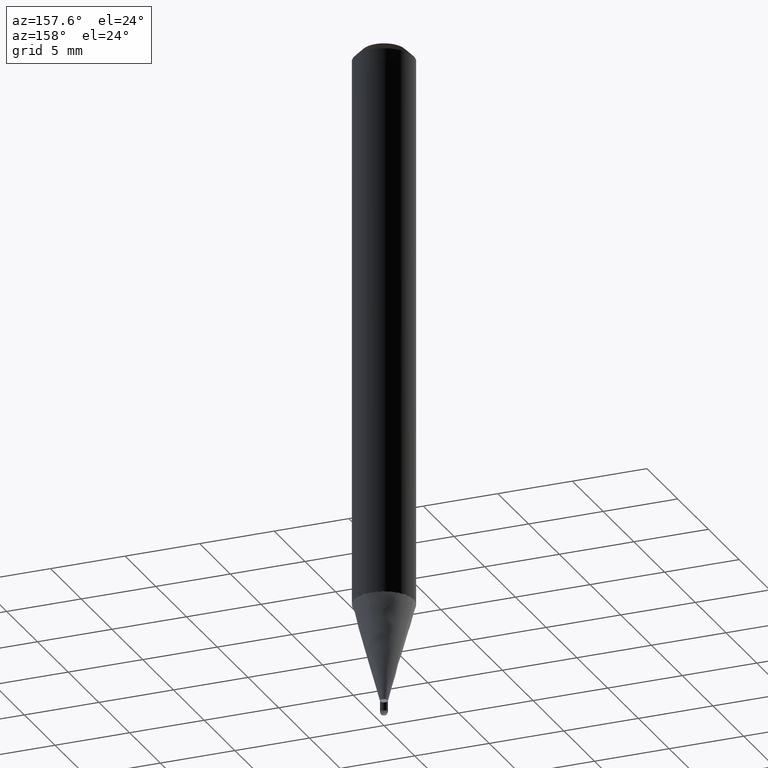
[diagram: clean part render]
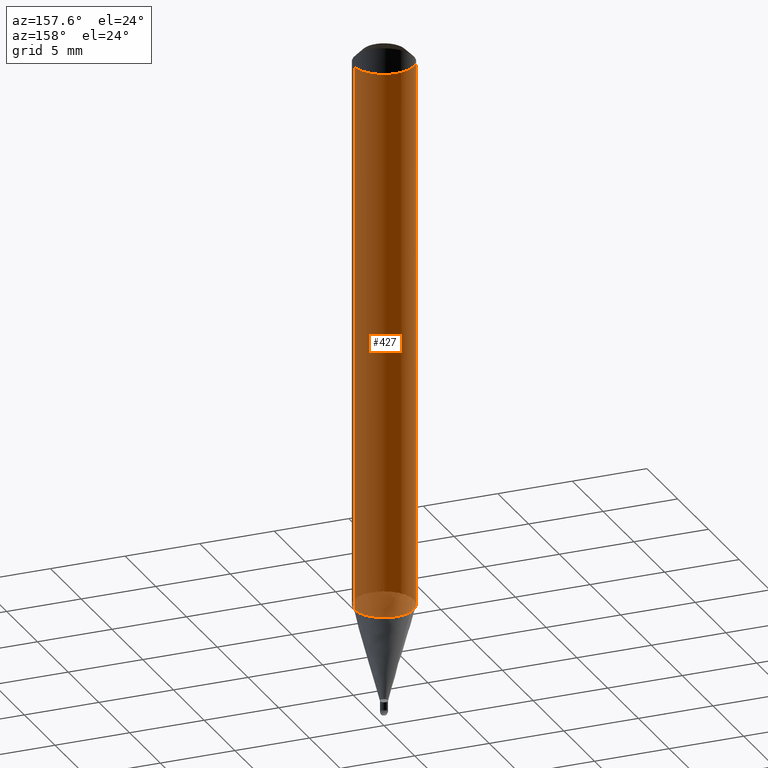
[diagram: same view with one face highlighted and labeled with its STEP entity id]
A machine part, auxiliary view. The second image highlights one B-rep face of the part: STEP entity #427.
In plain terms, the highlighted face is a freeform B-spline surface patch.
Its self-contained STEP definition (entity closure, byte-faithful):
#211=CARTESIAN_POINT('',(2.0,0.0,0.0));
#212=CARTESIAN_POINT('',(2.0,2.0,0.0));
#213=CARTESIAN_POINT('',(0.0,2.0,0.0));
#214=CARTESIAN_POINT('',(-2.0,2.0,0.0));
#215=CARTESIAN_POINT('',(-2.0,0.0,0.0));
#216=CARTESIAN_POINT('',(2.0,0.0,36.868));
#217=CARTESIAN_POINT('',(2.0,2.0,36.868));
#218=CARTESIAN_POINT('',(0.0,2.0,36.868));
#219=CARTESIAN_POINT('',(-2.0,2.0,36.868));
#220=CARTESIAN_POINT('',(-2.0,0.0,36.868));
#408=(
BOUNDED_SURFACE()
B_SPLINE_SURFACE(1,2,(
(#211,#212,#213,#214,#215),
(#216,#217,#218,#219,#220)
), .UNSPECIFIED.,.F.,.F.,.F.)
B_SPLINE_SURFACE_WITH_KNOTS((2,2),(3,2,3),(
0.0,1.0),(
0.0,0.5,1.0), .UNSPECIFIED.)
GEOMETRIC_REPRESENTATION_ITEM()
RATIONAL_B_SPLINE_SURFACE(((1.0,0.707106781187,1.0,0.707106781187,1.0),
(1.0,0.707106781187,1.0,0.707106781187,1.0)
))
REPRESENTATION_ITEM('')
SURFACE()
);
#409=(
BOUNDED_CURVE()
B_SPLINE_CURVE(2,(#216,#217,#218,#219,#220),.UNSPECIFIED.,.F.,.F.)
B_SPLINE_CURVE_WITH_KNOTS((3,2,3),
(0.0,0.5,1.0),.UNSPECIFIED.)
CURVE()
GEOMETRIC_REPRESENTATION_ITEM()
RATIONAL_B_SPLINE_CURVE((1.0,0.707106781187,1.0,0.707106781187,1.0))
REPRESENTATION_ITEM('')
);
#410=(
BOUNDED_CURVE()
B_SPLINE_CURVE(1,(#220,#215),.UNSPECIFIED.,.F.,.F.)
B_SPLINE_CURVE_WITH_KNOTS((2,2),
(0.0,1.0),.UNSPECIFIED.)
CURVE()
GEOMETRIC_REPRESENTATION_ITEM()
RATIONAL_B_SPLINE_CURVE((1.0,1.0))
REPRESENTATION_ITEM('')
);
#411=(
BOUNDED_CURVE()
B_SPLINE_CURVE(2,(#215,#214,#213,#212,#211),.UNSPECIFIED.,.F.,.F.)
B_SPLINE_CURVE_WITH_KNOTS((3,2,3),
(0.0,0.5,1.0),.UNSPECIFIED.)
CURVE()
GEOMETRIC_REPRESENTATION_ITEM()
RATIONAL_B_SPLINE_CURVE((1.0,0.707106781187,1.0,0.707106781187,1.0))
REPRESENTATION_ITEM('')
);
#412=(
BOUNDED_CURVE()
B_SPLINE_CURVE(1,(#211,#216),.UNSPECIFIED.,.F.,.F.)
B_SPLINE_CURVE_WITH_KNOTS((2,2),
(0.0,1.0),.UNSPECIFIED.)
CURVE()
GEOMETRIC_REPRESENTATION_ITEM()
RATIONAL_B_SPLINE_CURVE((1.0,1.0))
REPRESENTATION_ITEM('')
);
#413=VERTEX_POINT('',#211);
#414=VERTEX_POINT('',#215);
#415=VERTEX_POINT('',#216);
#416=VERTEX_POINT('',#220);
#417=EDGE_CURVE('',#415,#416,#409,.T.);
#418=EDGE_CURVE('',#416,#414,#410,.T.);
#419=EDGE_CURVE('',#414,#413,#411,.T.);
#420=EDGE_CURVE('',#413,#415,#412,.T.);
#421=ORIENTED_EDGE('',*,*,#417,.T.);
#422=ORIENTED_EDGE('',*,*,#418,.T.);
#423=ORIENTED_EDGE('',*,*,#419,.T.);
#424=ORIENTED_EDGE('',*,*,#420,.T.);
#425=EDGE_LOOP('',(#421,#422,#423,#424));
#426=FACE_OUTER_BOUND('',#425,.T.);
#427=ADVANCED_FACE('',(#426),#408,.T.);